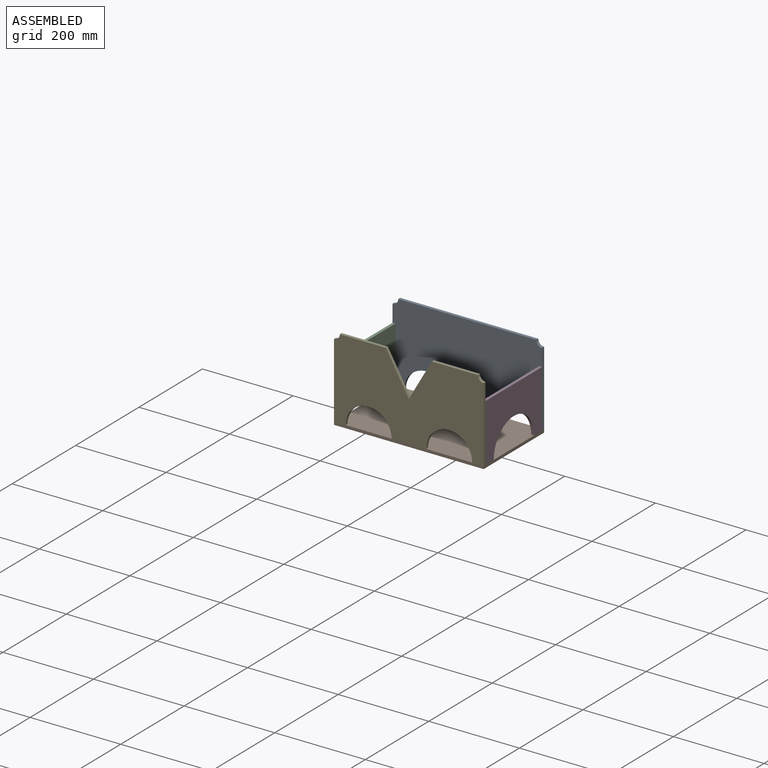
[diagram: assembled view]
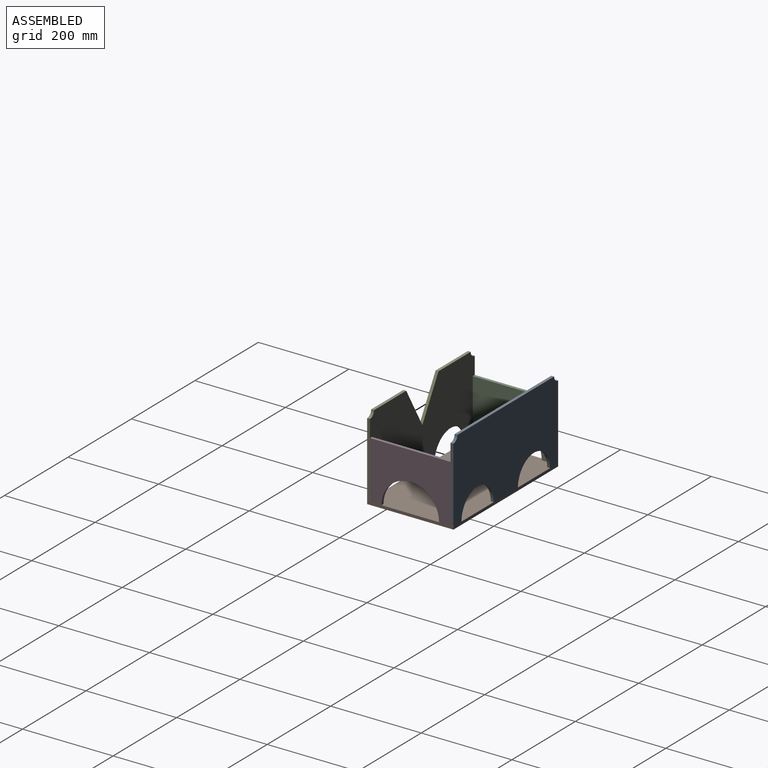
[diagram: assembled view, second angle]
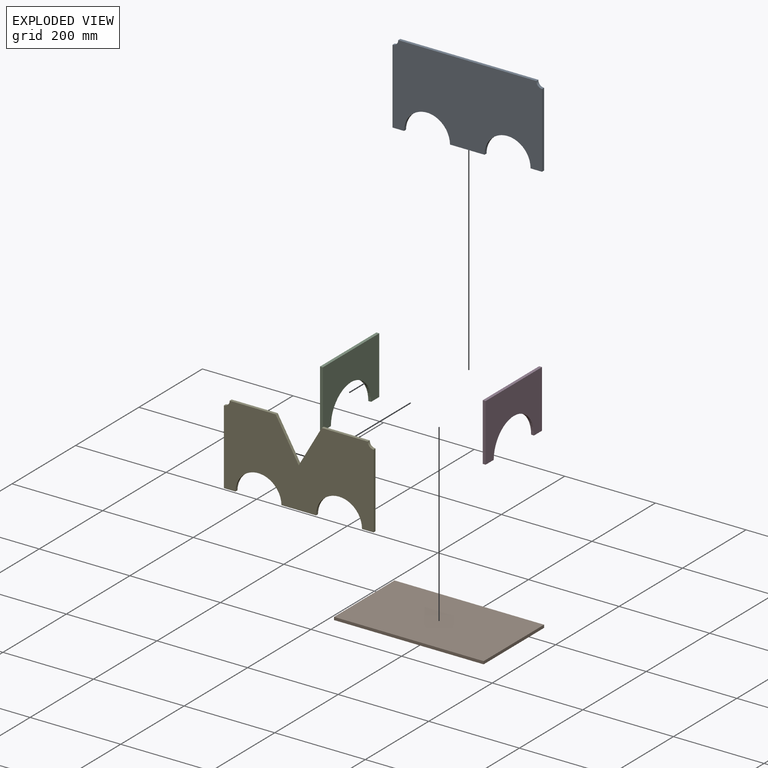
[diagram: exploded view]
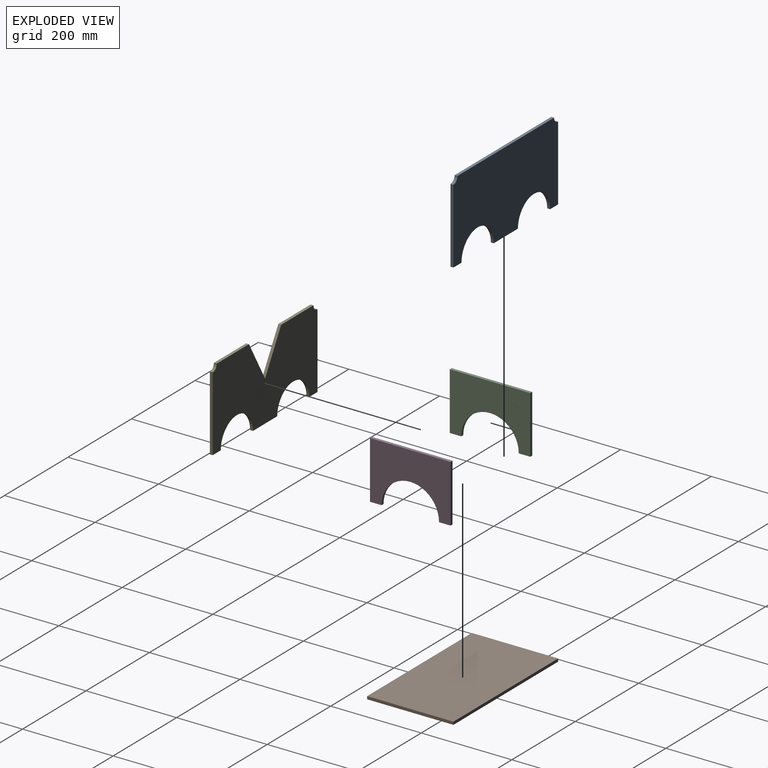
[diagram: exploded view, second angle]
ASSEMBLY  parts=5 mates=4
PART A: 12 faces, bbox 330.2x177.8x6.4 mm
  f0: cylinder r=50.8mm len=101.6mm, axis (0,0,-1), area 1005.4mm2, adj f1,f9,f10,f11
  f1: plane 76.2x6.35mm, normal (0,-1,0), area 483.9mm2, adj f0,f2,f10,f11
  f2: cylinder r=50.8mm len=101.6mm, axis (0,0,-1), area 1016.2mm2, adj f1,f3,f10,f11
  f3: plane 25.4x6.35mm, normal (0,-1,0), area 161.3mm2, adj f2,f4,f10,f11
  f4: plane 165.1x6.35mm, normal (1,0,0), area 1048.4mm2, adj f3,f5,f10,f11
  f5: cylinder r=12.7mm len=12.7mm, axis (0,0,-1), area 126.7mm2, adj f4,f6,f10,f11
  f6: plane 304.8x6.35mm, normal (0,1,0), area 1935.5mm2, adj f5,f7,f10,f11
  f7: cylinder r=12.7mm len=12.7mm, axis (0,0,-1), area 126.7mm2, adj f6,f8,f10,f11
  f8: plane 165.1x6.35mm, normal (-1,0,0), area 1048.4mm2, adj f7,f9,f10,f11
  f9: plane 25.4x6.35mm, normal (0,-1,0), area 161.3mm2, adj f0,f8,f10,f11
  f10: plane 330.2x177.8mm, normal (0,0,1), area 50390.7mm2, adj f0,f1,f2,f3,f4,f5,f6,f7
  f11: plane 330.2x177.8mm, normal (0,0,-1), area 50390.7mm2, adj f0,f1,f2,f3,f4,f5,f6,f7
PART B: 6 faces, bbox 330.2x190.5x6.4 mm
  f0: plane 330.2x6.35mm, normal (0,1,0), area 2096.8mm2, adj f1,f3,f4,f5
  f1: plane 190.5x6.35mm, normal (-1,0,0), area 1209.7mm2, adj f0,f2,f4,f5
  f2: plane 330.2x6.35mm, normal (0,-1,0), area 2096.8mm2, adj f1,f3,f4,f5
  f3: plane 190.5x6.35mm, normal (1,0,0), area 1209.7mm2, adj f0,f2,f4,f5
  f4: plane 330.2x190.5mm, normal (0,0,1), area 62903.1mm2, adj f0,f1,f2,f3
  f5: plane 330.2x190.5mm, normal (0,0,-1), area 62903.1mm2, adj f0,f1,f2,f3
PART C: 8 faces, bbox 177.8x127x6.4 mm
  f0: plane 177.8x6.35mm, normal (0,1,0), area 1129mm2, adj f1,f5,f6,f7
  f1: plane 127x6.35mm, normal (-1,0,0), area 806.5mm2, adj f0,f2,f6,f7
  f2: plane 25.4x6.35mm, normal (0,-1,0), area 161.3mm2, adj f1,f3,f6,f7
  f3: cylinder r=63.5mm len=127mm, axis (0,0,-1), area 1266.8mm2, adj f2,f4,f6,f7
  f4: plane 25.4x6.35mm, normal (0,-1,0), area 161.3mm2, adj f3,f5,f6,f7
  f5: plane 127x6.35mm, normal (1,0,0), area 806.5mm2, adj f0,f4,f6,f7
  f6: plane 177.8x127mm, normal (0,0,1), area 16246.8mm2, adj f0,f1,f2,f3,f4,f5
  f7: plane 177.8x127mm, normal (0,0,-1), area 16246.8mm2, adj f0,f1,f2,f3,f4,f5
PART D: 8 faces, bbox 177.8x127x6.4 mm
  f0: plane 177.8x6.35mm, normal (0,1,0), area 1129mm2, adj f1,f5,f6,f7
  f1: plane 127x6.35mm, normal (-1,0,0), area 806.5mm2, adj f0,f2,f6,f7
  f2: plane 25.4x6.35mm, normal (0,-1,0), area 161.3mm2, adj f1,f3,f6,f7
  f3: cylinder r=63.5mm len=127mm, axis (0,0,-1), area 1266.8mm2, adj f2,f4,f6,f7
  f4: plane 25.4x6.35mm, normal (0,-1,0), area 161.3mm2, adj f3,f5,f6,f7
  f5: plane 127x6.35mm, normal (1,0,0), area 806.5mm2, adj f0,f4,f6,f7
  f6: plane 177.8x127mm, normal (0,0,1), area 16246.8mm2, adj f0,f1,f2,f3,f4,f5
  f7: plane 177.8x127mm, normal (0,0,-1), area 16246.8mm2, adj f0,f1,f2,f3,f4,f5
PART E: 15 faces, bbox 330.2x177.8x6.4 mm
  f0: plane 101.6x6.35mm, normal (0,1,0), area 645.1mm2, adj f1,f12,f13,f14
  f1: plane 87.99x50.8mm, normal (-0.87,0.5,0), area 645.2mm2, adj f0,f2,f13,f14
  f2: plane 87.99x50.8mm, normal (0.87,0.5,0), area 645.2mm2, adj f1,f3,f13,f14
  f3: plane 101.6x6.35mm, normal (0,1,0), area 645.1mm2, adj f2,f4,f13,f14
  f4: cylinder r=12.7mm len=12.7mm, axis (0,0,-1), area 126.7mm2, adj f3,f5,f13,f14
  f5: plane 165.1x6.35mm, normal (-1,0,0), area 1048.4mm2, adj f4,f6,f13,f14
  f6: plane 25.4x6.35mm, normal (0,-1,0), area 161.3mm2, adj f5,f7,f13,f14
  f7: cylinder r=50.8mm len=101.6mm, axis (0,0,-1), area 1005.4mm2, adj f6,f8,f13,f14
  f8: plane 76.2x6.35mm, normal (0,-1,0), area 483.9mm2, adj f7,f9,f13,f14
  f9: cylinder r=50.8mm len=101.6mm, axis (0,0,-1), area 1016.2mm2, adj f8,f10,f13,f14
  f10: plane 25.4x6.35mm, normal (0,-1,0), area 161.3mm2, adj f9,f11,f13,f14
  f11: plane 165.1x6.35mm, normal (1,0,0), area 1048.4mm2, adj f10,f12,f13,f14
  f12: cylinder r=12.7mm len=12.7mm, axis (0,0,-1), area 126.7mm2, adj f0,f11,f13,f14
  f13: plane 330.2x177.8mm, normal (0,0,1), area 45920.7mm2, adj f0,f1,f2,f3,f4,f5,f6,f7
  f14: plane 330.2x177.8mm, normal (0,0,-1), area 45920.7mm2, adj f0,f1,f2,f3,f4,f5,f6,f7
PLACE A rot(axis=(1,0,0),90deg) t=(19.24,-164.27,132.55)mm
PLACE B t=(-425.19,-21.2,-68.11)mm
PLACE C rot(axis=(0.58,-0.58,-0.58),120deg) t=(25.59,327.89,-79.69)mm
PLACE D rot(axis=(0.58,-0.58,-0.58),120deg) t=(349.44,328,59.63)mm
PLACE E rot(axis=(1,0,0),90deg) t=(19.24,-348.42,-61.76)mm
MATE fastened B.f4 <-> A.f3  axis (0,0,1) through (349.44,-164.27,-61.76)mm
MATE fastened C.f1 <-> A.f10  axis (0,-1,0) through (19.24,-170.62,-61.76)mm
MATE fastened B.f4 <-> E.f6  axis (0,0,1) through (19.24,-354.77,-61.76)mm
MATE fastened D.f5 <-> E.f14  axis (0,-1,0) through (349.44,-348.42,-61.76)mm
